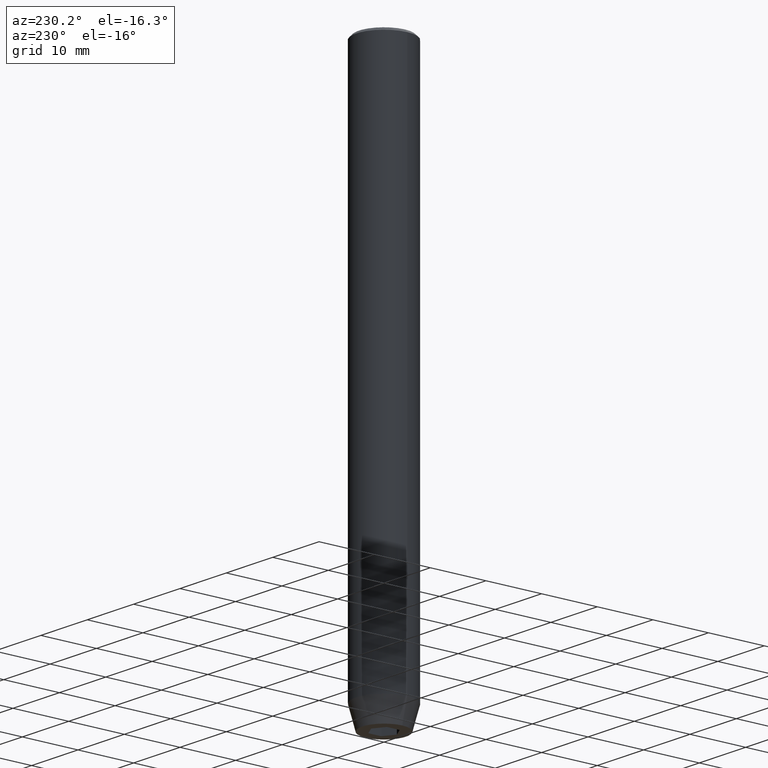
[diagram: clean part render]
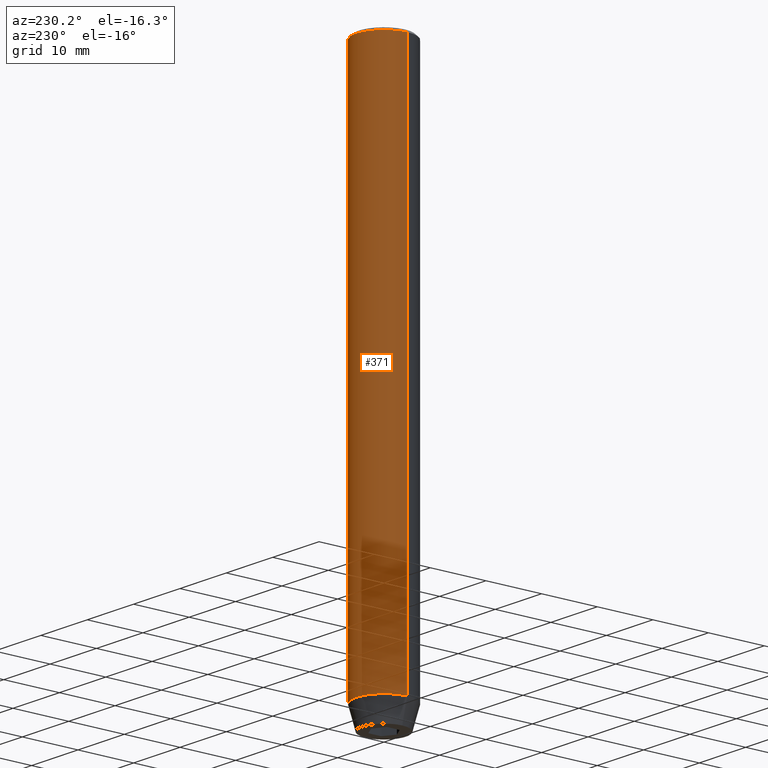
[diagram: same view with one face highlighted and labeled with its STEP entity id]
A machine part, auxiliary view. The second image highlights one B-rep face of the part: STEP entity #371.
In plain terms, the highlighted cylindrical surface (edge-blend (fillet) strip) has radius 5 mm, axis along (-0, -0, 1).
Its self-contained STEP definition (entity closure, byte-faithful):
#3 = CARTESIAN_POINT ( 'NONE',  ( 5.000000000000000000, 0.000000000000000000, 0.000000000000000000 ) ) ;
#45 = CARTESIAN_POINT ( 'NONE',  ( 5.000000000000000000, 0.000000000000000000, -96.00000000000000000 ) ) ;
#48 = LINE ( 'NONE', #3, #492 ) ;
#50 = EDGE_CURVE ( 'NONE', #71, #538, #48, .T. ) ;
#55 = DIRECTION ( 'NONE',  ( -0.000000000000000000, -0.000000000000000000, 1.000000000000000000 ) ) ;
#71 = VERTEX_POINT ( 'NONE', #45 ) ;
#76 = DIRECTION ( 'NONE',  ( 0.000000000000000000, 0.000000000000000000, -1.000000000000000000 ) ) ;
#83 = AXIS2_PLACEMENT_3D ( 'NONE', #152, #76, #297 ) ;
#94 = ORIENTED_EDGE ( 'NONE', *, *, #50, .F. ) ;
#107 = CIRCLE ( 'NONE', #256, 5.000000000000000000 ) ;
#123 = DIRECTION ( 'NONE',  ( 1.000000000000000000, 0.000000000000000000, 0.000000000000000000 ) ) ;
#140 = DIRECTION ( 'NONE',  ( -0.000000000000000000, -0.000000000000000000, 1.000000000000000000 ) ) ;
#152 = CARTESIAN_POINT ( 'NONE',  ( 0.000000000000000000, 0.000000000000000000, -0.4999999999999857891 ) ) ;
#163 = VERTEX_POINT ( 'NONE', #518 ) ;
#175 = CARTESIAN_POINT ( 'NONE',  ( 5.000000000000000000, 0.000000000000000000, -0.4999999999999857891 ) ) ;
#183 = VERTEX_POINT ( 'NONE', #279 ) ;
#187 = ORIENTED_EDGE ( 'NONE', *, *, #427, .T. ) ;
#232 = FACE_OUTER_BOUND ( 'NONE', #258, .T. ) ;
#233 = LINE ( 'NONE', #564, #485 ) ;
#256 = AXIS2_PLACEMENT_3D ( 'NONE', #318, #140, #123 ) ;
#258 = EDGE_LOOP ( 'NONE', ( #187, #391, #438, #94 ) ) ;
#279 = CARTESIAN_POINT ( 'NONE',  ( -5.000000000000000000, 6.123233995736766282E-16, -0.4999999999999857891 ) ) ;
#282 = AXIS2_PLACEMENT_3D ( 'NONE', #536, #313, #437 ) ;
#295 = EDGE_CURVE ( 'NONE', #183, #538, #456, .T. ) ;
#297 = DIRECTION ( 'NONE',  ( 1.000000000000000000, 0.000000000000000000, 0.000000000000000000 ) ) ;
#313 = DIRECTION ( 'NONE',  ( -0.000000000000000000, -0.000000000000000000, 1.000000000000000000 ) ) ;
#318 = CARTESIAN_POINT ( 'NONE',  ( 0.000000000000000000, 0.000000000000000000, -96.00000000000000000 ) ) ;
#371 = ADVANCED_FACE ( 'NONE', ( #232 ), #549, .T. ) ;
#391 = ORIENTED_EDGE ( 'NONE', *, *, #491, .T. ) ;
#427 = EDGE_CURVE ( 'NONE', #71, #163, #107, .T. ) ;
#437 = DIRECTION ( 'NONE',  ( 1.000000000000000000, 0.000000000000000000, 0.000000000000000000 ) ) ;
#438 = ORIENTED_EDGE ( 'NONE', *, *, #295, .T. ) ;
#456 = CIRCLE ( 'NONE', #83, 5.000000000000000000 ) ;
#485 = VECTOR ( 'NONE', #516, 1000.000000000000000 ) ;
#491 = EDGE_CURVE ( 'NONE', #163, #183, #233, .T. ) ;
#492 = VECTOR ( 'NONE', #55, 1000.000000000000000 ) ;
#516 = DIRECTION ( 'NONE',  ( -0.000000000000000000, -0.000000000000000000, 1.000000000000000000 ) ) ;
#518 = CARTESIAN_POINT ( 'NONE',  ( -5.000000000000000000, 6.123233995736766282E-16, -96.00000000000000000 ) ) ;
#536 = CARTESIAN_POINT ( 'NONE',  ( 0.000000000000000000, 0.000000000000000000, 0.000000000000000000 ) ) ;
#538 = VERTEX_POINT ( 'NONE', #175 ) ;
#549 = CYLINDRICAL_SURFACE ( 'NONE', #282, 5.000000000000000000 ) ;
#564 = CARTESIAN_POINT ( 'NONE',  ( -5.000000000000000000, 6.123233995736766282E-16, 0.000000000000000000 ) ) ;